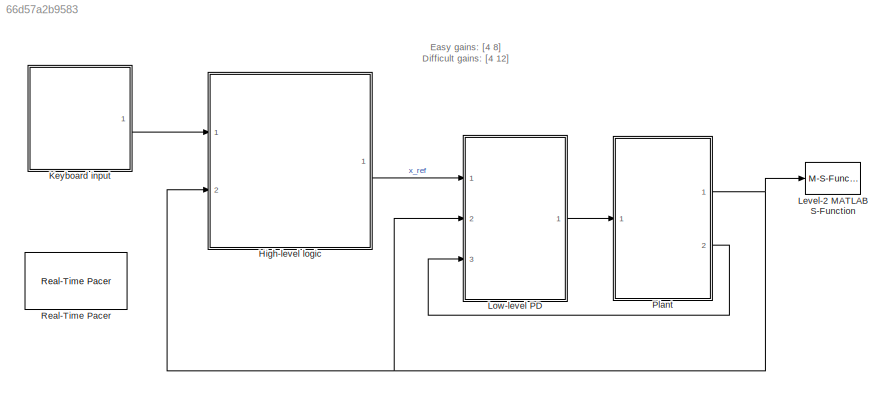
MODEL slx_66d57a2b9583
KIND model
CONFIG AbsTol = auto
CONFIG EnableMultiTasking = off
CONFIG FixedStep = 0.01
CONFIG MaxStep = auto
CONFIG MinStep = auto
CONFIG RelTol = 1e-3
CONFIG SampleTimeConstraint = Unconstrained
CONFIG Solver = FixedStepAuto
CONFIG SolverName = FixedStepAuto
CONFIG StartTime = 0.0
CONFIG StopTime = Inf
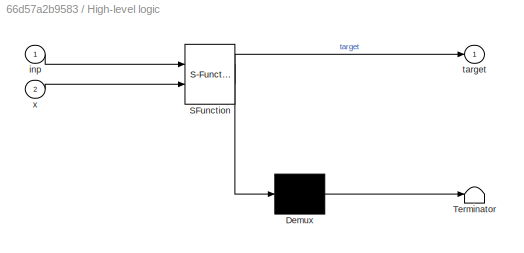
BLOCK [SubSystem] High-level logic
  BlockKeywords = __PRM__SERIALIZED__DATA__:Stateflow Chart,Stateflow Diagram
  ErrorFcn = Stateflow.Translate.translate
  PermitHierarchicalResolution = ExplicitOnly
  Ports = [2, 1]
  RequestExecContextInheritance = off
  SFBlockType = Chart
  TreatAsAtomicUnit = on
BLOCK [Demux] High-level logic/ Demux 
  Outputs = 1
  Ports = [1, 1]
BLOCK [S-Function] High-level logic/ SFunction 
  EnableBusSupport = on
  FunctionName = sf_sfun
  PortCounts = [2 2]
  Ports = [2, 2]
  SFcnIsStateOwnerBlock = off
  SFunctionDeploymentMode = off
  Tag = Stateflow S-Function sim_test 3
BLOCK [Terminator] High-level logic/ Terminator 
BLOCK [Inport] High-level logic/inp
  IconDisplay = Port number
BLOCK [Outport] High-level logic/target
  IconDisplay = Port number
BLOCK [Inport] High-level logic/x
  IconDisplay = Port number
  Port = 2
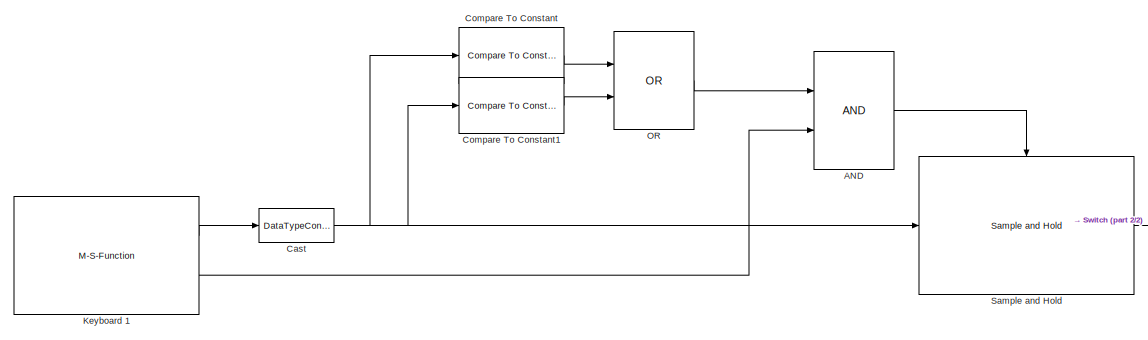
[diagram: Keyboard input - part 1/2, center side, full height]
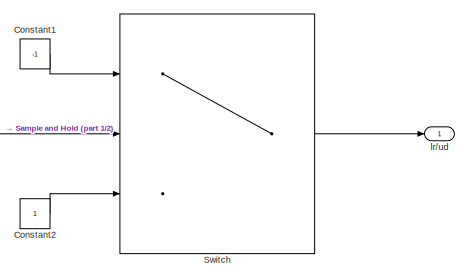
[diagram: Keyboard input - part 2/2, middle right region]
BLOCK [SubSystem] Keyboard input
  Ports = [0, 1]
  RequestExecContextInheritance = off
BLOCK [Logic] Keyboard input/AND
  AllPortsSameDT = off
  IconShape = distinctive
  OutDataTypeStr = boolean
  Ports = [2, 1]
BLOCK [DataTypeConversion] Keyboard input/Cast
  OutDataTypeStr = uint8
  RndMeth = Floor
  SaturateOnIntegerOverflow = off
BLOCK [Reference] Keyboard input/Compare To Constant  REF=simulink/Logic and Bit
Operations/Compare
To Constant
  Ports = [1, 1]
  SourceBlock = simulink/Logic and Bit\nOperations/Compare\nTo Constant
  SourceProductBaseCode = SL
  SourceProductName = Simulink
  SourceType = Compare To Constant
BLOCK [Reference] Keyboard input/Compare To Constant1  REF=simulink/Logic and Bit
Operations/Compare
To Constant
  Ports = [1, 1]
  SourceBlock = simulink/Logic and Bit\nOperations/Compare\nTo Constant
  SourceProductBaseCode = SL
  SourceProductName = Simulink
  SourceType = Compare To Constant
BLOCK [Constant] Keyboard input/Constant1
  Value = -1
BLOCK [Constant] Keyboard input/Constant2
BLOCK [M-S-Function] Keyboard input/Keyboard 1
  FunctionName = sfun_keyboard_input_v1_2b
  Ports = [0, 2]
BLOCK [Logic] Keyboard input/OR
  AllPortsSameDT = off
  IconShape = distinctive
  Operator = OR
  OutDataTypeStr = boolean
  Ports = [2, 1]
BLOCK [Reference] Keyboard input/Sample and Hold  REF=dspsigops/Sample
and Hold
  Ports = [1, 1, 0, 1]
  SourceBlock = dspsigops/Sample\nand Hold
  SourceProductBaseCode = DS
  SourceProductName = DSP System Toolbox
  SourceType = Sample and Hold
BLOCK [Switch] Keyboard input/Switch
  Criteria = u2 > Threshold
  InputSameDT = off
  SaturateOnIntegerOverflow = off
  Threshold = 100
BLOCK [Outport] Keyboard input/lr//ud
  IconDisplay = Port number
BLOCK [M-S-Function] Level-2 MATLAB S-Function
  FunctionName = sfun_plot2d
  Ports = [1]
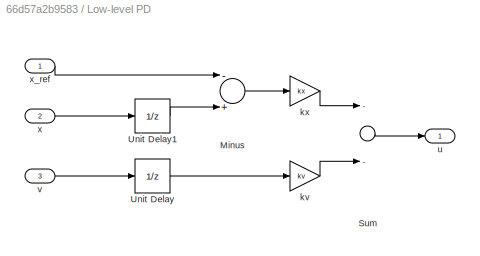
BLOCK [SubSystem] Low-level PD
  Ports = [3, 1]
  RequestExecContextInheritance = off
BLOCK [Sum] Low-level PD/Minus
  InputSameDT = off
  Inputs = -+
  OutDataTypeStr = Inherit: Inherit via internal rule
  Ports = [2, 1]
  SaturateOnIntegerOverflow = off
BLOCK [Sum] Low-level PD/Sum
  InputSameDT = off
  Inputs = --
  OutDataTypeStr = Inherit: Inherit via internal rule
  Ports = [2, 1]
  SaturateOnIntegerOverflow = off
BLOCK [UnitDelay] Low-level PD/Unit Delay
  HasFrameUpgradeWarning = on
  SampleTime = -1
BLOCK [UnitDelay] Low-level PD/Unit Delay1
  HasFrameUpgradeWarning = on
  SampleTime = -1
BLOCK [Gain] Low-level PD/kv
  Gain = kv
  OutDataTypeStr = Inherit: Inherit via internal rule
  ParamDataTypeStr = Inherit: Inherit via internal rule
  SaturateOnIntegerOverflow = off
BLOCK [Gain] Low-level PD/kx
  Gain = kx
  OutDataTypeStr = Inherit: Inherit via internal rule
  ParamDataTypeStr = Inherit: Inherit via internal rule
  SaturateOnIntegerOverflow = off
BLOCK [Outport] Low-level PD/u
  IconDisplay = Port number
BLOCK [Inport] Low-level PD/v
  IconDisplay = Port number
  Port = 3
BLOCK [Inport] Low-level PD/x
  IconDisplay = Port number
  Port = 2
BLOCK [Inport] Low-level PD/x_ref
  IconDisplay = Port number
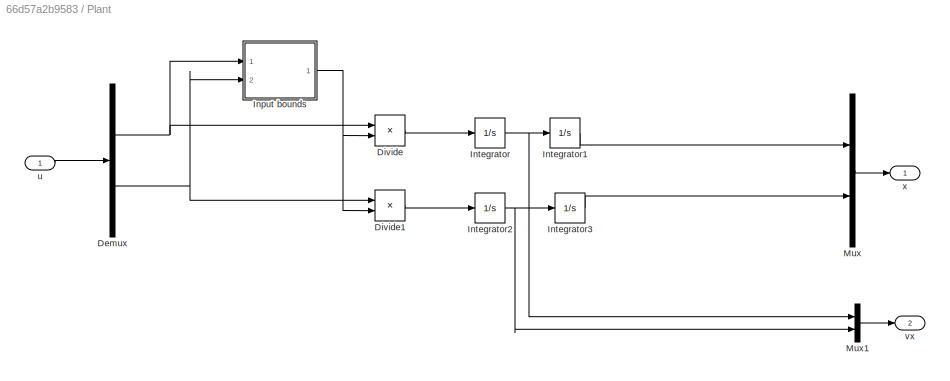
BLOCK [SubSystem] Plant
  Ports = [1, 2]
  RequestExecContextInheritance = off
BLOCK [Demux] Plant/Demux
  DisplayOption = bar
  Outputs = 2
  Ports = [1, 2]
BLOCK [Product] Plant/Divide
  InputSameDT = off
  Inputs = */
  OutDataTypeStr = Inherit: Inherit via internal rule
  Ports = [2, 1]
  RndMeth = Floor
  SaturateOnIntegerOverflow = off
BLOCK [Product] Plant/Divide1
  InputSameDT = off
  Inputs = */
  OutDataTypeStr = Inherit: Inherit via internal rule
  Ports = [2, 1]
  RndMeth = Floor
  SaturateOnIntegerOverflow = off
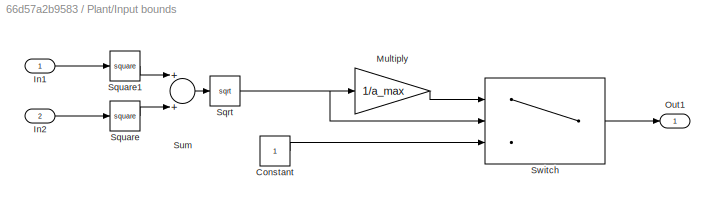
BLOCK [SubSystem] Plant/Input bounds
  Ports = [2, 1]
  RequestExecContextInheritance = off
BLOCK [Constant] Plant/Input bounds/Constant
BLOCK [Inport] Plant/Input bounds/In1
  IconDisplay = Port number
BLOCK [Inport] Plant/Input bounds/In2
  IconDisplay = Port number
  Port = 2
BLOCK [Gain] Plant/Input bounds/Multiply
  Gain = 1/a_max
  OutDataTypeStr = Inherit: Inherit via internal rule
  ParamDataTypeStr = Inherit: Inherit via internal rule
  SaturateOnIntegerOverflow = off
BLOCK [Outport] Plant/Input bounds/Out1
  IconDisplay = Port number
BLOCK [Sqrt] Plant/Input bounds/Sqrt
BLOCK [Math] Plant/Input bounds/Square
  Operator = square
  Ports = [1, 1]
BLOCK [Math] Plant/Input bounds/Square1
  Operator = square
  Ports = [1, 1]
BLOCK [Sum] Plant/Input bounds/Sum
  InputSameDT = off
  OutDataTypeStr = Inherit: Inherit via internal rule
  Ports = [2, 1]
  SaturateOnIntegerOverflow = off
BLOCK [Switch] Plant/Input bounds/Switch
  Criteria = u2 > Threshold
  InputSameDT = off
  SaturateOnIntegerOverflow = off
  Threshold = a_max
BLOCK [Integrator] Plant/Integrator
  Ports = [1, 1]
BLOCK [Integrator] Plant/Integrator1
  InitialCondition = x0
  Ports = [1, 1]
BLOCK [Integrator] Plant/Integrator2
  Ports = [1, 1]
BLOCK [Integrator] Plant/Integrator3
  InitialCondition = y0
  Ports = [1, 1]
BLOCK [Mux] Plant/Mux
  DisplayOption = bar
  Inputs = 2
  Ports = [2, 1]
BLOCK [Mux] Plant/Mux1
  DisplayOption = bar
  Inputs = 2
  Ports = [2, 1]
BLOCK [Inport] Plant/u
  IconDisplay = Port number
BLOCK [Outport] Plant/vx
  IconDisplay = Port number
  Port = 2
BLOCK [Outport] Plant/x
  IconDisplay = Port number
BLOCK [Reference] Real-Time Pacer  REF=realtime_pacer_lib/Real-Time Pacer
  Ports = []
  SourceBlock = realtime_pacer_lib/Real-Time Pacer
  SourceType = RealTime_Pacer
ANNOTATION (root): Easy gains: [4 8] Difficult gains: [4 12]
LINE High-level logic:1 -> Low-level PD:1
LINE Keyboard input/AND:1 -> Keyboard input/Sample and Hold:trigger
NET Keyboard input/Cast:1 -> Keyboard input/Compare To Constant1:1, Keyboard input/Compare To Constant:1, Keyboard input/Sample and Hold:1
LINE Keyboard input/Compare To Constant1:1 -> Keyboard input/OR:2
LINE Keyboard input/Compare To Constant:1 -> Keyboard input/OR:1
LINE Keyboard input/Constant1:1 -> Keyboard input/Switch:1
LINE Keyboard input/Constant2:1 -> Keyboard input/Switch:3
LINE Keyboard input/Keyboard 1:1 -> Keyboard input/Cast:1
LINE Keyboard input/Keyboard 1:2 -> Keyboard input/AND:2
LINE Keyboard input/OR:1 -> Keyboard input/AND:1
LINE Keyboard input/Sample and Hold:1 -> Keyboard input/Switch:2
LINE Keyboard input/Switch:1 -> Keyboard input/lr//ud:1
LINE Keyboard input:1 -> High-level logic:1
LINE Low-level PD/Minus:1 -> Low-level PD/kx:1
LINE Low-level PD/Sum:1 -> Low-level PD/u:1
LINE Low-level PD/Unit Delay1:1 -> Low-level PD/Minus:2
LINE Low-level PD/Unit Delay:1 -> Low-level PD/kv:1
LINE Low-level PD/kv:1 -> Low-level PD/Sum:2
LINE Low-level PD/kx:1 -> Low-level PD/Sum:1
LINE Low-level PD/v:1 -> Low-level PD/Unit Delay:1
LINE Low-level PD/x:1 -> Low-level PD/Unit Delay1:1
LINE Low-level PD/x_ref:1 -> Low-level PD/Minus:1
LINE Low-level PD:1 -> Plant:1
NET Plant/Demux:1 -> Plant/Divide:1, Plant/Input bounds:1
NET Plant/Demux:2 -> Plant/Divide1:1, Plant/Input bounds:2
LINE Plant/Divide1:1 -> Plant/Integrator2:1
LINE Plant/Divide:1 -> Plant/Integrator:1
LINE Plant/Input bounds/Constant:1 -> Plant/Input bounds/Switch:3
LINE Plant/Input bounds/In1:1 -> Plant/Input bounds/Square1:1
LINE Plant/Input bounds/In2:1 -> Plant/Input bounds/Square:1
LINE Plant/Input bounds/Multiply:1 -> Plant/Input bounds/Switch:1
NET Plant/Input bounds/Sqrt:1 -> Plant/Input bounds/Multiply:1, Plant/Input bounds/Switch:2
LINE Plant/Input bounds/Square1:1 -> Plant/Input bounds/Sum:1
LINE Plant/Input bounds/Square:1 -> Plant/Input bounds/Sum:2
LINE Plant/Input bounds/Sum:1 -> Plant/Input bounds/Sqrt:1
LINE Plant/Input bounds/Switch:1 -> Plant/Input bounds/Out1:1
NET Plant/Input bounds:1 -> Plant/Divide1:2, Plant/Divide:2
LINE Plant/Integrator1:1 -> Plant/Mux:1
NET Plant/Integrator2:1 -> Plant/Integrator3:1, Plant/Mux1:2
LINE Plant/Integrator3:1 -> Plant/Mux:2
NET Plant/Integrator:1 -> Plant/Integrator1:1, Plant/Mux1:1
LINE Plant/Mux1:1 -> Plant/vx:1
LINE Plant/Mux:1 -> Plant/x:1
LINE Plant/u:1 -> Plant/Demux:1
NET Plant:1 -> High-level logic:2, Level-2 MATLAB S-Function:1, Low-level PD:2
LINE Plant:2 -> Low-level PD:3
note: NET lines group one-source signal fan-out (src -> all destinations, sorted); 1:1 wires keep LINE
CHART High-level logic states=5 transitions=9
  STATE_LABEL 'Top\nen:\n target = [2.5; 0.25];\n flag = -1;'
  STATE_LABEL 'Left\nen:\n flag = 1;\n target = [4.75; 2.5];\n'
  STATE_LABEL 'Center\ndu:\nif inCenter(x)\n    if inp < 0 && flag > 0\n        target = [4.75; 2.5];\n    elseif inp < 0 && flag < 0\n        target = [0.25; 2.5];\n    elseif inp > 0 && flag > 0\n        target = [2.5; 4.75];\n    elseif inp > 0 && flag < 0\n        target = [2.5; 0.25];\n    end\nend\n'
  STATE_LABEL 'Right\nen:\n target = [0.25; 2.5];\n flag = -1;\n'
  STATE_LABEL 'Bottom\nen:\n target = [2.5; 4.75];\n flag = 1;'
